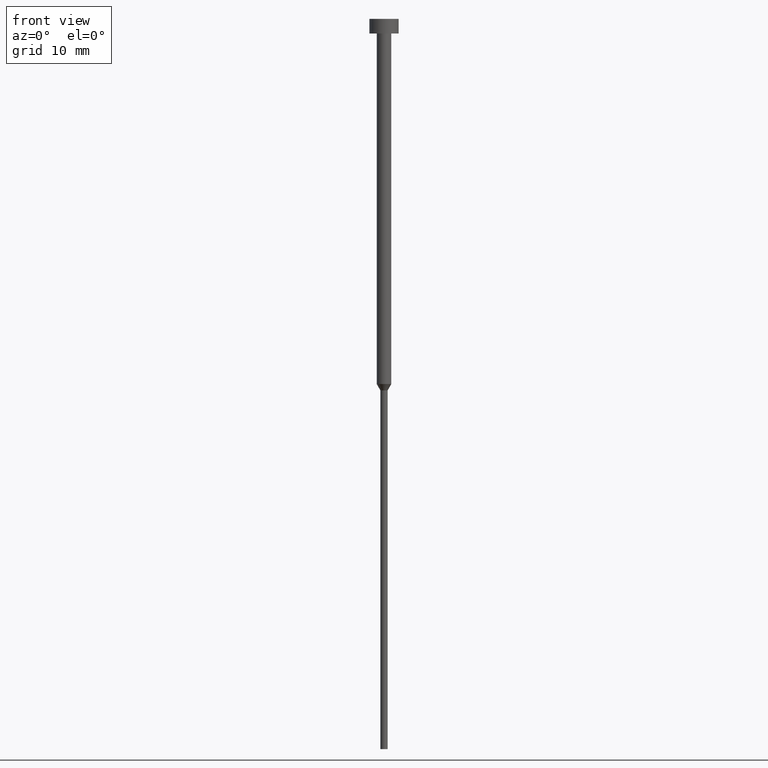
[diagram: clean part render]
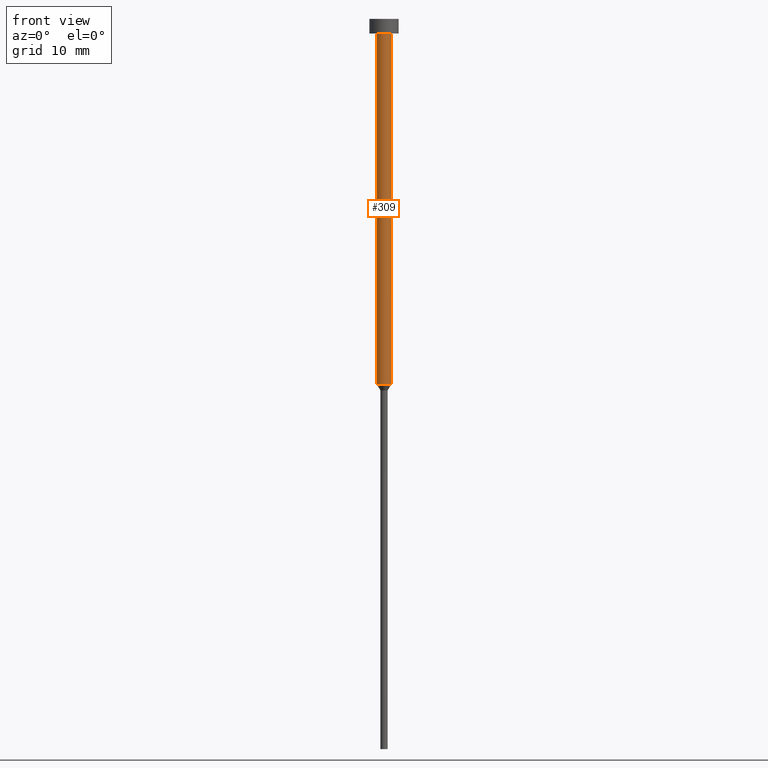
[diagram: same view with one face highlighted and labeled with its STEP entity id]
A machine part, front view. The second image highlights one B-rep face of the part: STEP entity #309.
In plain terms, the highlighted cylindrical surface (edge-blend (fillet) strip) has radius 1 mm, axis along (-0, -0, 1).
Its self-contained STEP definition (entity closure, byte-faithful):
#3 = CARTESIAN_POINT ( 'NONE',  ( 0.000000000000000000, 0.000000000000000000, -2.000000000000000444 ) ) ;
#13 = ORIENTED_EDGE ( 'NONE', *, *, #94, .T. ) ;
#16 = ORIENTED_EDGE ( 'NONE', *, *, #115, .F. ) ;
#19 = CARTESIAN_POINT ( 'NONE',  ( -1.000000000000003553, 1.224646799147357398E-16, -2.000000000000000444 ) ) ;
#27 = DIRECTION ( 'NONE',  ( -0.000000000000000000, -0.000000000000000000, 1.000000000000000000 ) ) ;
#35 = EDGE_LOOP ( 'NONE', ( #16, #13, #272, #348 ) ) ;
#41 = AXIS2_PLACEMENT_3D ( 'NONE', #304, #57, #151 ) ;
#54 = CIRCLE ( 'NONE', #64, 1.000000000000003553 ) ;
#57 = DIRECTION ( 'NONE',  ( -0.000000000000000000, -0.000000000000000000, 1.000000000000000000 ) ) ;
#64 = AXIS2_PLACEMENT_3D ( 'NONE', #3, #111, #86 ) ;
#65 = EDGE_CURVE ( 'NONE', #125, #321, #302, .T. ) ;
#73 = CIRCLE ( 'NONE', #41, 1.000000000000003109 ) ;
#75 = LINE ( 'NONE', #353, #343 ) ;
#86 = DIRECTION ( 'NONE',  ( 1.000000000000000000, 0.000000000000000000, 0.000000000000000000 ) ) ;
#93 = VERTEX_POINT ( 'NONE', #191 ) ;
#94 = EDGE_CURVE ( 'NONE', #93, #125, #73, .T. ) ;
#101 = VERTEX_POINT ( 'NONE', #19 ) ;
#111 = DIRECTION ( 'NONE',  ( -0.000000000000000000, -0.000000000000000000, 1.000000000000000000 ) ) ;
#115 = EDGE_CURVE ( 'NONE', #93, #101, #75, .T. ) ;
#125 = VERTEX_POINT ( 'NONE', #204 ) ;
#129 = CARTESIAN_POINT ( 'NONE',  ( 0.000000000000000000, 0.000000000000000000, 0.000000000000000000 ) ) ;
#138 = VECTOR ( 'NONE', #27, 1000.000000000000000 ) ;
#151 = DIRECTION ( 'NONE',  ( 1.000000000000000000, 0.000000000000000000, 0.000000000000000000 ) ) ;
#170 = EDGE_CURVE ( 'NONE', #101, #321, #54, .T. ) ;
#181 = DIRECTION ( 'NONE',  ( 1.000000000000000000, 0.000000000000000000, 0.000000000000000000 ) ) ;
#191 = CARTESIAN_POINT ( 'NONE',  ( -1.000000000000003109, 1.224646799147356905E-16, -50.00000000000000000 ) ) ;
#198 = AXIS2_PLACEMENT_3D ( 'NONE', #129, #211, #181 ) ;
#202 = DIRECTION ( 'NONE',  ( -0.000000000000000000, -0.000000000000000000, 1.000000000000000000 ) ) ;
#204 = CARTESIAN_POINT ( 'NONE',  ( 1.000000000000003109, 0.000000000000000000, -50.00000000000000000 ) ) ;
#211 = DIRECTION ( 'NONE',  ( -0.000000000000000000, -0.000000000000000000, 1.000000000000000000 ) ) ;
#272 = ORIENTED_EDGE ( 'NONE', *, *, #65, .T. ) ;
#274 = FACE_OUTER_BOUND ( 'NONE', #35, .T. ) ;
#278 = CARTESIAN_POINT ( 'NONE',  ( 1.000000000000003331, 0.000000000000000000, 0.000000000000000000 ) ) ;
#302 = LINE ( 'NONE', #278, #138 ) ;
#304 = CARTESIAN_POINT ( 'NONE',  ( 0.000000000000000000, 0.000000000000000000, -50.00000000000000000 ) ) ;
#309 = ADVANCED_FACE ( 'NONE', ( #274 ), #334, .T. ) ;
#321 = VERTEX_POINT ( 'NONE', #352 ) ;
#334 = CYLINDRICAL_SURFACE ( 'NONE', #198, 1.000000000000003331 ) ;
#343 = VECTOR ( 'NONE', #202, 1000.000000000000000 ) ;
#348 = ORIENTED_EDGE ( 'NONE', *, *, #170, .F. ) ;
#352 = CARTESIAN_POINT ( 'NONE',  ( 1.000000000000003553, 0.000000000000000000, -2.000000000000000444 ) ) ;
#353 = CARTESIAN_POINT ( 'NONE',  ( -1.000000000000003331, 1.224646799147357151E-16, 0.000000000000000000 ) ) ;